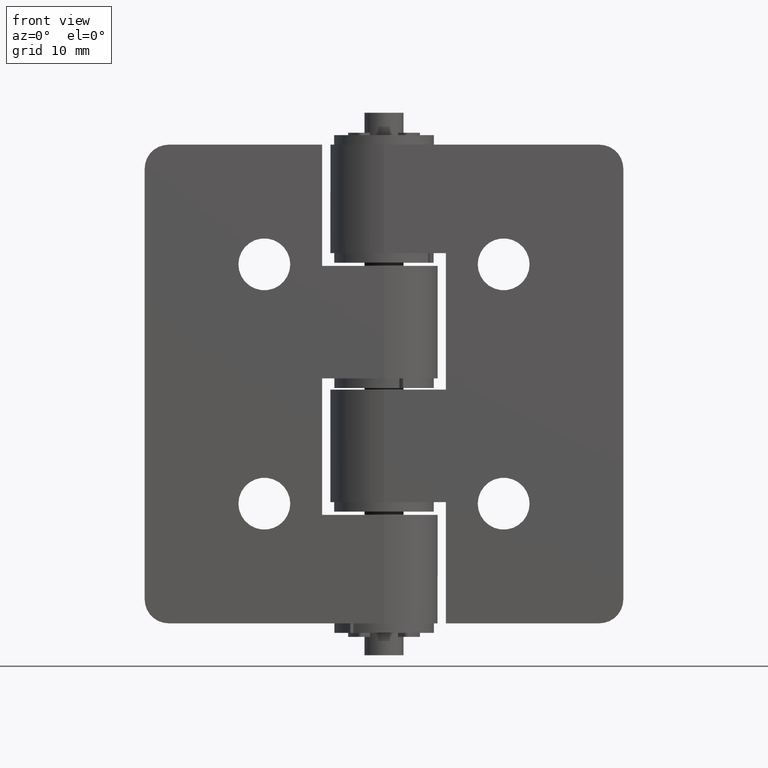
[diagram: clean part render]
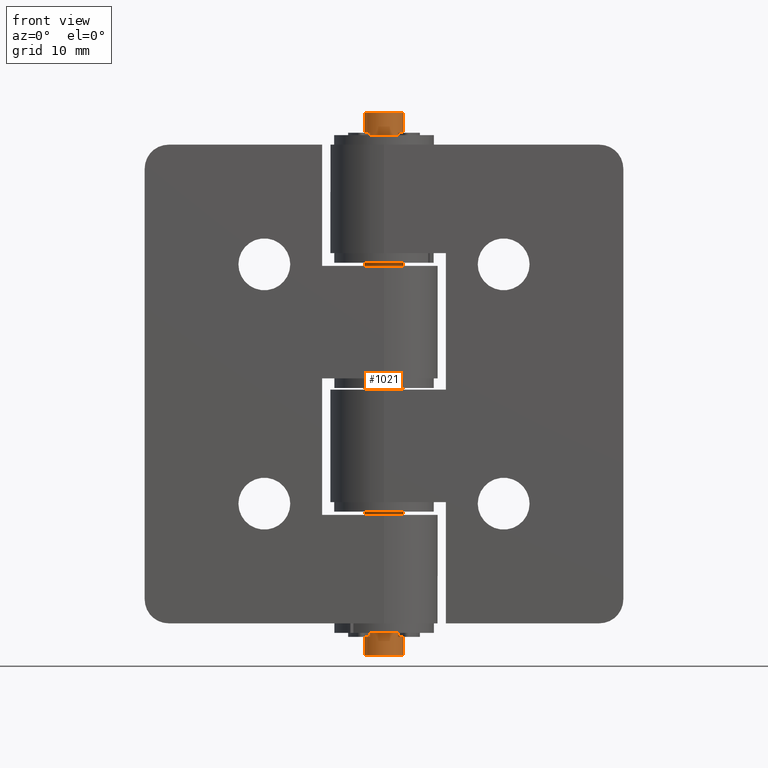
[diagram: same view with one face highlighted and labeled with its STEP entity id]
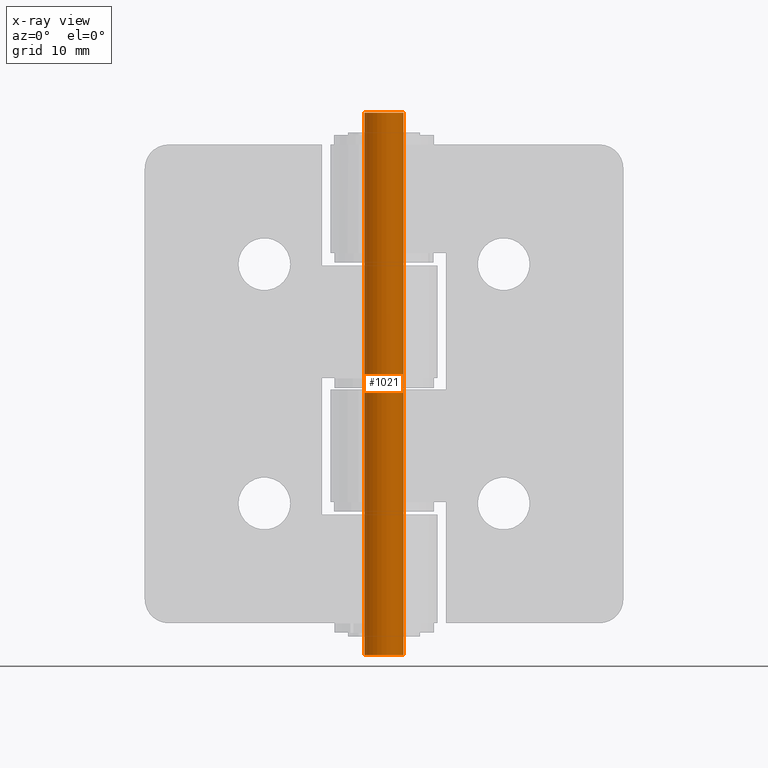
[diagram: x-ray of the same camera — body ghosted, the highlighted face saturated]
A machine part, front view. The second image highlights one B-rep face of the part: STEP entity #1021.
The next image is the same camera in x-ray: the body ghosted, the highlighted face saturated — about 0% of this face is hidden behind the body in this view.
In plain terms, the highlighted cylindrical surface (bore or boss wall) has radius 2.45 mm, axis along (0, 0, -1).
Its self-contained STEP definition (entity closure, byte-faithful):
#87=FACE_BOUND('',#221,.T.);
#146=FACE_OUTER_BOUND('',#220,.T.);
#220=EDGE_LOOP('',(#811));
#221=EDGE_LOOP('',(#812));
#432=CIRCLE('',#1114,2.45);
#433=CIRCLE('',#1115,2.45);
#508=VERTEX_POINT('',#1679);
#509=VERTEX_POINT('',#1681);
#619=EDGE_CURVE('',#508,#508,#432,.T.);
#620=EDGE_CURVE('',#509,#509,#433,.T.);
#811=ORIENTED_EDGE('',*,*,#619,.F.);
#812=ORIENTED_EDGE('',*,*,#620,.T.);
#978=CYLINDRICAL_SURFACE('',#1113,2.45);
#1021=ADVANCED_FACE('',(#146,#87),#978,.T.);
#1113=AXIS2_PLACEMENT_3D('',#1678,#1333,#1334);
#1114=AXIS2_PLACEMENT_3D('',#1680,#1335,#1336);
#1115=AXIS2_PLACEMENT_3D('',#1682,#1337,#1338);
#1333=DIRECTION('center_axis',(0.,0.,-1.));
#1334=DIRECTION('ref_axis',(-1.,0.,0.));
#1335=DIRECTION('center_axis',(0.,0.,-1.));
#1336=DIRECTION('ref_axis',(-1.,0.,0.));
#1337=DIRECTION('center_axis',(0.,0.,-1.));
#1338=DIRECTION('ref_axis',(-1.,0.,0.));
#1678=CARTESIAN_POINT('Origin',(0.,0.,0.));
#1679=CARTESIAN_POINT('',(2.45,3.00038465791102E-16,-68.));
#1680=CARTESIAN_POINT('Origin',(0.,0.,-68.));
#1681=CARTESIAN_POINT('',(2.45,3.00038465791102E-16,0.));
#1682=CARTESIAN_POINT('Origin',(0.,0.,0.));